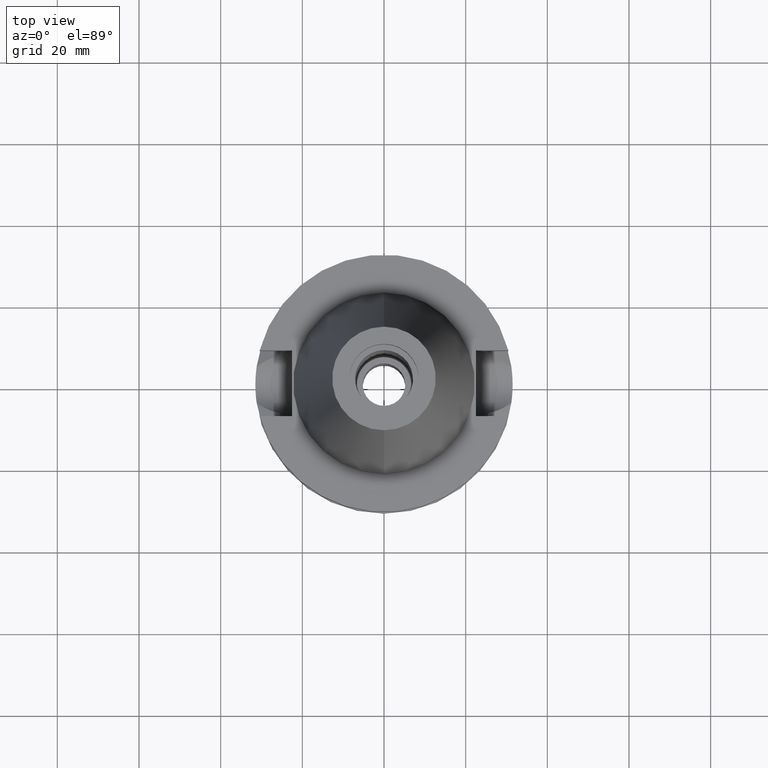
[diagram: clean part render]
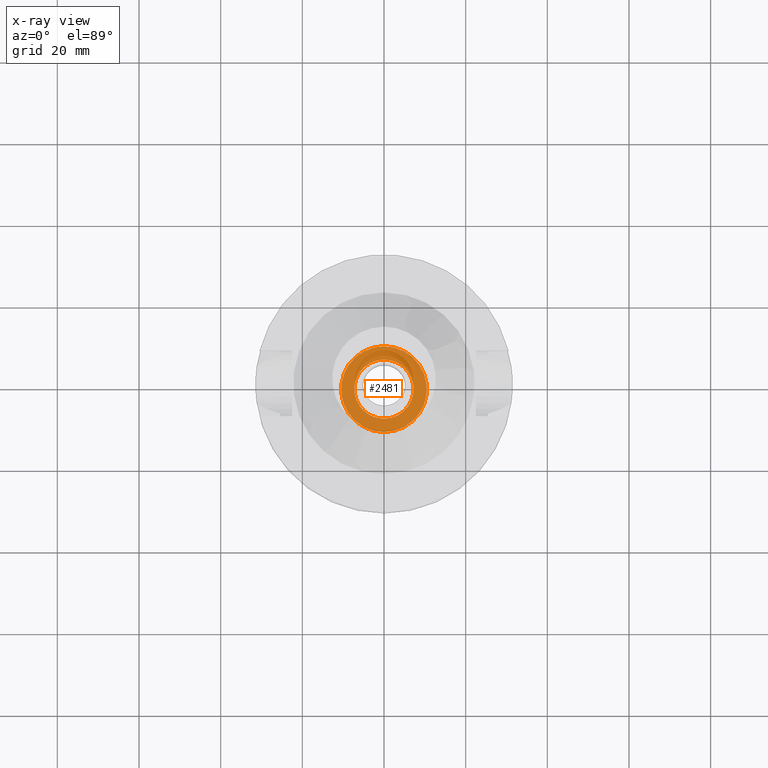
[diagram: x-ray — body ghosted, one internal face saturated and labeled with its STEP entity id]
A machine part, top view, then the same camera in x-ray: the body is ghosted and one INTERNAL B-rep face — a face not visible from any outside direction — is saturated and labeled: STEP entity #2481.
In plain terms, the highlighted planar face has unit normal (0, 0, -1).
Its self-contained STEP definition (entity closure, byte-faithful):
#2 = CARTESIAN_POINT ( 'NONE',  ( 0.0000000000000000000, 10.50000000000000000, -8.200000000000001066 ) ) ;
#131 = CIRCLE ( 'NONE', #2598, 7.250000000000000000 ) ;
#193 = DIRECTION ( 'NONE',  ( 0.0000000000000000000, 1.000000000000000000, 0.0000000000000000000 ) ) ;
#206 = AXIS2_PLACEMENT_3D ( 'NONE', #466, #2716, #193 ) ;
#299 = ORIENTED_EDGE ( 'NONE', *, *, #1707, .F. ) ;
#342 = EDGE_CURVE ( 'NONE', #1515, #2192, #1148, .T. ) ;
#454 = EDGE_LOOP ( 'NONE', ( #299, #2939 ) ) ;
#466 = CARTESIAN_POINT ( 'NONE',  ( 0.0000000000000000000, 0.0000000000000000000, -8.200000000000001066 ) ) ;
#771 = FACE_BOUND ( 'NONE', #454, .T. ) ;
#791 = PLANE ( 'NONE',  #2313 ) ;
#795 = CIRCLE ( 'NONE', #2674, 7.250000000000000000 ) ;
#859 = CIRCLE ( 'NONE', #206, 10.50000000000000000 ) ;
#1148 = CIRCLE ( 'NONE', #2901, 10.50000000000000000 ) ;
#1297 = EDGE_LOOP ( 'NONE', ( #3120, #2859 ) ) ;
#1423 = CARTESIAN_POINT ( 'NONE',  ( 0.0000000000000000000, 7.250000000000000000, -8.200000000000001066 ) ) ;
#1515 = VERTEX_POINT ( 'NONE', #2547 ) ;
#1633 = CARTESIAN_POINT ( 'NONE',  ( 0.0000000000000000000, 0.0000000000000000000, -8.200000000000001066 ) ) ;
#1707 = EDGE_CURVE ( 'NONE', #3246, #3306, #131, .T. ) ;
#1822 = DIRECTION ( 'NONE',  ( 0.0000000000000000000, 1.000000000000000000, 0.0000000000000000000 ) ) ;
#1902 = CARTESIAN_POINT ( 'NONE',  ( 0.0000000000000000000, 0.0000000000000000000, -8.200000000000001066 ) ) ;
#2192 = VERTEX_POINT ( 'NONE', #2 ) ;
#2247 = DIRECTION ( 'NONE',  ( 0.0000000000000000000, 0.0000000000000000000, 1.000000000000000000 ) ) ;
#2271 = CARTESIAN_POINT ( 'NONE',  ( 0.0000000000000000000, 0.0000000000000000000, -8.200000000000001066 ) ) ;
#2313 = AXIS2_PLACEMENT_3D ( 'NONE', #1902, #2782, #3020 ) ;
#2481 = ADVANCED_FACE ( 'NONE', ( #2503, #771 ), #791, .F. ) ;
#2503 = FACE_OUTER_BOUND ( 'NONE', #1297, .T. ) ;
#2547 = CARTESIAN_POINT ( 'NONE',  ( 0.0000000000000000000, -10.50000000000000000, -8.200000000000001066 ) ) ;
#2598 = AXIS2_PLACEMENT_3D ( 'NONE', #2935, #2599, #1822 ) ;
#2599 = DIRECTION ( 'NONE',  ( 0.0000000000000000000, 0.0000000000000000000, 1.000000000000000000 ) ) ;
#2674 = AXIS2_PLACEMENT_3D ( 'NONE', #2271, #2247, #3325 ) ;
#2716 = DIRECTION ( 'NONE',  ( 0.0000000000000000000, 0.0000000000000000000, -1.000000000000000000 ) ) ;
#2748 = DIRECTION ( 'NONE',  ( 0.0000000000000000000, 0.0000000000000000000, -1.000000000000000000 ) ) ;
#2767 = DIRECTION ( 'NONE',  ( 0.0000000000000000000, -1.000000000000000000, 0.0000000000000000000 ) ) ;
#2782 = DIRECTION ( 'NONE',  ( 0.0000000000000000000, 0.0000000000000000000, -1.000000000000000000 ) ) ;
#2784 = CARTESIAN_POINT ( 'NONE',  ( 0.0000000000000000000, -7.250000000000000000, -8.200000000000001066 ) ) ;
#2859 = ORIENTED_EDGE ( 'NONE', *, *, #342, .F. ) ;
#2901 = AXIS2_PLACEMENT_3D ( 'NONE', #1633, #2748, #2767 ) ;
#2935 = CARTESIAN_POINT ( 'NONE',  ( 0.0000000000000000000, 0.0000000000000000000, -8.200000000000001066 ) ) ;
#2939 = ORIENTED_EDGE ( 'NONE', *, *, #3276, .F. ) ;
#3020 = DIRECTION ( 'NONE',  ( 0.0000000000000000000, -1.000000000000000000, 0.0000000000000000000 ) ) ;
#3120 = ORIENTED_EDGE ( 'NONE', *, *, #3625, .F. ) ;
#3246 = VERTEX_POINT ( 'NONE', #1423 ) ;
#3276 = EDGE_CURVE ( 'NONE', #3306, #3246, #795, .T. ) ;
#3306 = VERTEX_POINT ( 'NONE', #2784 ) ;
#3325 = DIRECTION ( 'NONE',  ( 0.0000000000000000000, -1.000000000000000000, 0.0000000000000000000 ) ) ;
#3625 = EDGE_CURVE ( 'NONE', #2192, #1515, #859, .T. ) ;